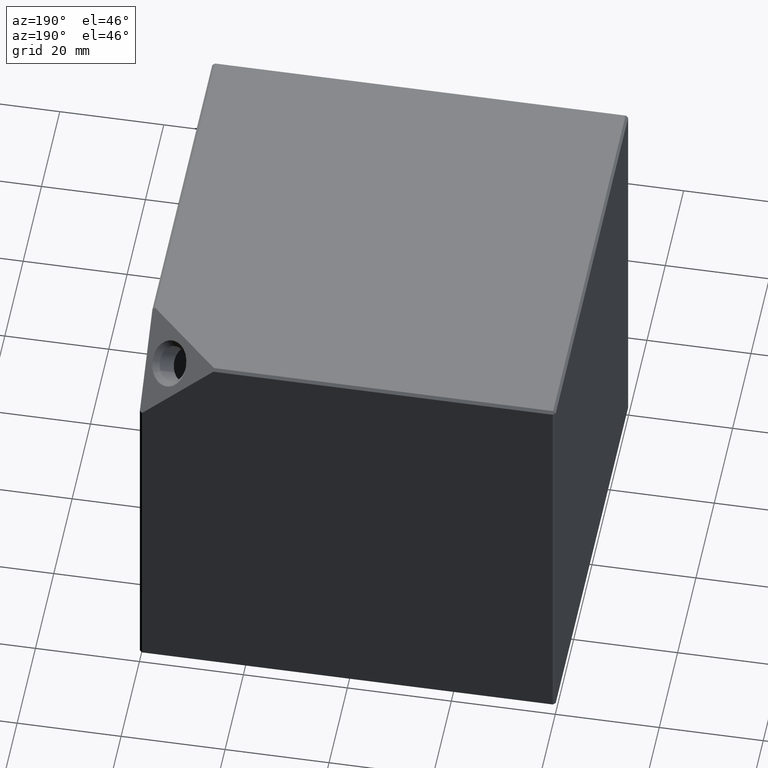
[diagram: clean part render]
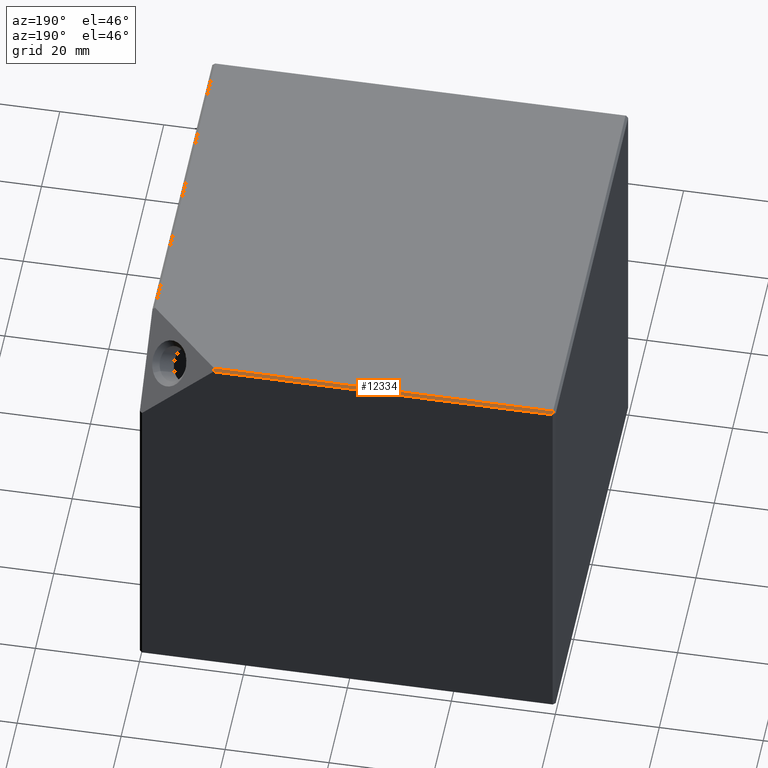
[diagram: same view with one face highlighted and labeled with its STEP entity id]
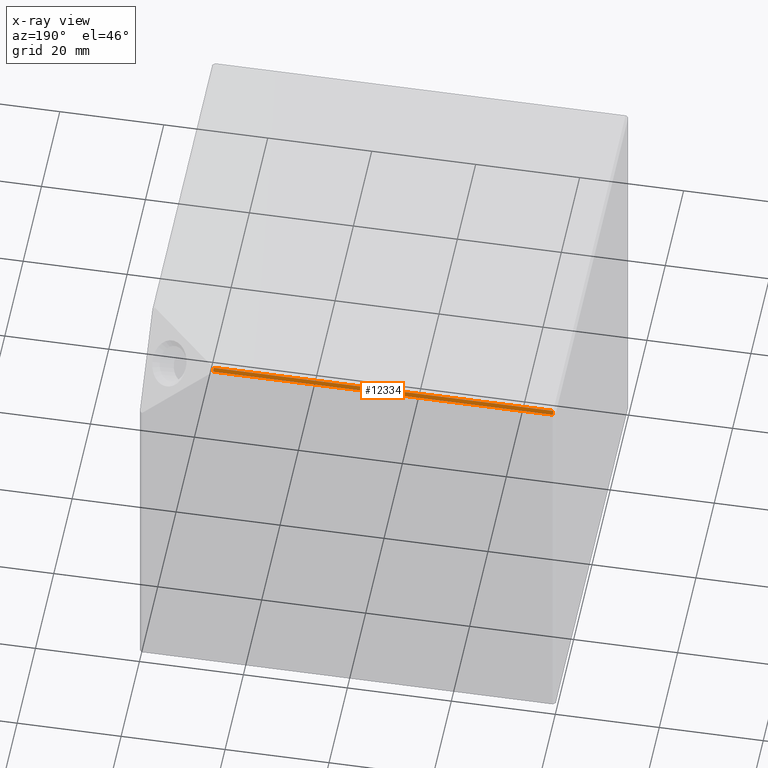
[diagram: x-ray of the same camera — body ghosted, the highlighted face saturated]
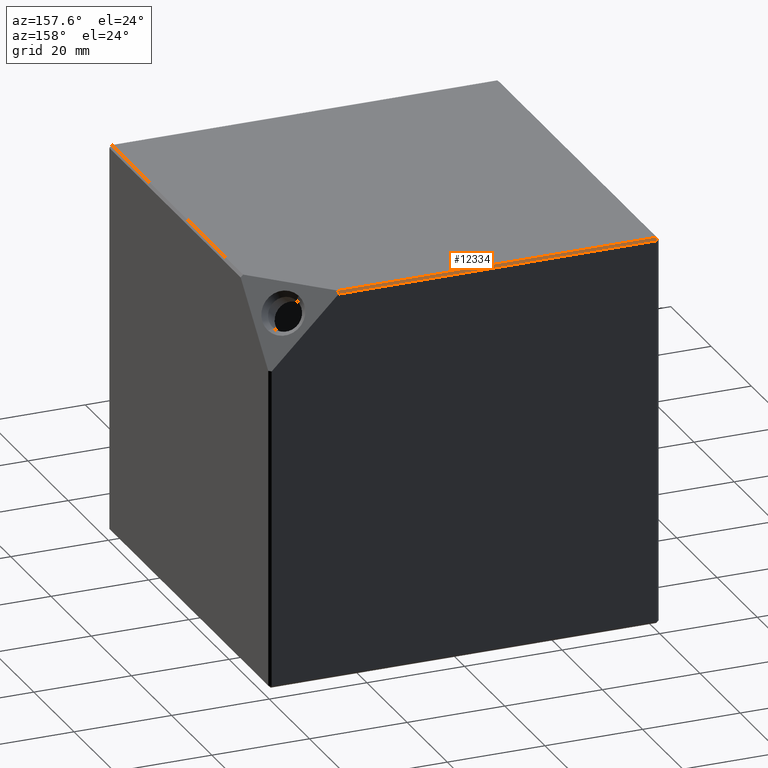
[diagram: same view with one face highlighted and labeled with its STEP entity id]
A machine part, auxiliary view. The second image highlights one B-rep face of the part: STEP entity #12334.
The next image is the same camera in x-ray: the body ghosted, the highlighted face saturated — about 0% of this face is hidden behind the body in this view.
A second angle (auxiliary view) of the same face is appended — the face is thin or edge-on in the first view.
In plain terms, the highlighted planar face has unit normal (0, 0.7071, 0.7071).
Its self-contained STEP definition (entity closure, byte-faithful):
#82 = AXIS2_PLACEMENT_3D ( 'NONE', #11808, #11715, #2967 ) ;
#640 = EDGE_CURVE ( 'NONE', #9573, #12778, #5507, .T. ) ;
#694 = VERTEX_POINT ( 'NONE', #5196 ) ;
#699 = DIRECTION ( 'NONE',  ( 1.000000000000000000, -8.673617379884035500E-017, 0.0000000000000000000 ) ) ;
#776 = CARTESIAN_POINT ( 'NONE',  ( -40.00000000000000700, 39.50000000000000700, 40.00000000000000000 ) ) ;
#1440 = EDGE_CURVE ( 'NONE', #694, #9573, #5153, .T. ) ;
#1609 = ORIENTED_EDGE ( 'NONE', *, *, #7946, .F. ) ;
#2967 = DIRECTION ( 'NONE',  ( 1.000000000000000000, -8.673617379884035500E-017, 0.0000000000000000000 ) ) ;
#4926 = CARTESIAN_POINT ( 'NONE',  ( 25.27756813566454100, 39.99999999999998600, 39.50000000000002800 ) ) ;
#5153 = LINE ( 'NONE', #776, #13854 ) ;
#5196 = CARTESIAN_POINT ( 'NONE',  ( 25.77756813566451700, 39.50000000000000000, 40.00000000000000000 ) ) ;
#5468 = LINE ( 'NONE', #4926, #11033 ) ;
#5507 = LINE ( 'NONE', #7477, #10373 ) ;
#6378 = DIRECTION ( 'NONE',  ( -1.000000000000000000, 8.673617379884035500E-017, 0.0000000000000000000 ) ) ;
#7097 = EDGE_CURVE ( 'NONE', #12778, #7782, #5468, .T. ) ;
#7477 = CARTESIAN_POINT ( 'NONE',  ( -39.50000000000002800, 39.50000000000000700, 40.00000000000000000 ) ) ;
#7782 = VERTEX_POINT ( 'NONE', #11531 ) ;
#7946 = EDGE_CURVE ( 'NONE', #7782, #694, #13441, .T. ) ;
#8223 = VECTOR ( 'NONE', #9787, 1000.000000000000000 ) ;
#8581 = ORIENTED_EDGE ( 'NONE', *, *, #640, .F. ) ;
#9045 = EDGE_LOOP ( 'NONE', ( #1609, #13363, #8581, #10415 ) ) ;
#9573 = VERTEX_POINT ( 'NONE', #10626 ) ;
#9787 = DIRECTION ( 'NONE',  ( 2.442162611707126800E-014, -0.7071067811865597900, 0.7071067811865352500 ) ) ;
#10315 = PLANE ( 'NONE',  #82 ) ;
#10373 = VECTOR ( 'NONE', #10682, 1000.000000000000000 ) ;
#10415 = ORIENTED_EDGE ( 'NONE', *, *, #1440, .F. ) ;
#10626 = CARTESIAN_POINT ( 'NONE',  ( -39.50000000000002100, 39.50000000000000700, 40.00000000000000000 ) ) ;
#10682 = DIRECTION ( 'NONE',  ( 4.903554850278223000E-015, 0.7071067811865597900, -0.7071067811865352500 ) ) ;
#10904 = CARTESIAN_POINT ( 'NONE',  ( 25.77756813566452000, 39.50000000000044800, 39.99999999999955900 ) ) ;
#11033 = VECTOR ( 'NONE', #699, 1000.000000000000000 ) ;
#11531 = CARTESIAN_POINT ( 'NONE',  ( 25.77756813566450200, 39.99999999999999300, 39.50000000000002100 ) ) ;
#11715 = DIRECTION ( 'NONE',  ( 6.133173666733389300E-017, 0.7071067811865352500, 0.7071067811865597900 ) ) ;
#11808 = CARTESIAN_POINT ( 'NONE',  ( 3.426078865054194000E-015, 39.50000000000000000, 40.00000000000000000 ) ) ;
#12334 = ADVANCED_FACE ( 'NONE', ( #13848 ), #10315, .T. ) ;
#12778 = VERTEX_POINT ( 'NONE', #14019 ) ;
#13363 = ORIENTED_EDGE ( 'NONE', *, *, #7097, .F. ) ;
#13441 = LINE ( 'NONE', #10904, #8223 ) ;
#13848 = FACE_OUTER_BOUND ( 'NONE', #9045, .T. ) ;
#13854 = VECTOR ( 'NONE', #6378, 1000.000000000000000 ) ;
#14019 = CARTESIAN_POINT ( 'NONE',  ( -39.50000000000002100, 39.99999999999999300, 39.50000000000002800 ) ) ;